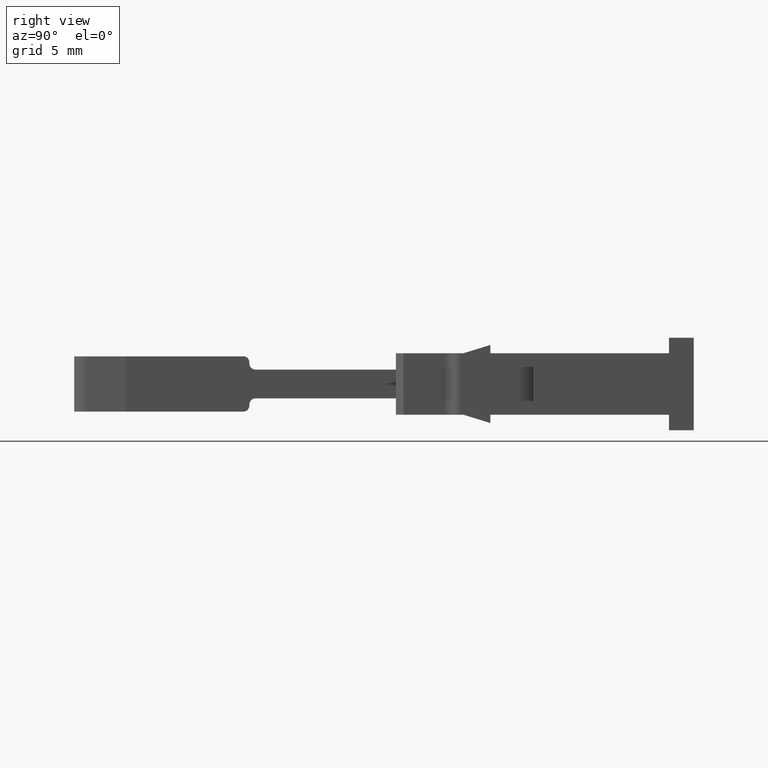
[diagram: clean part render]
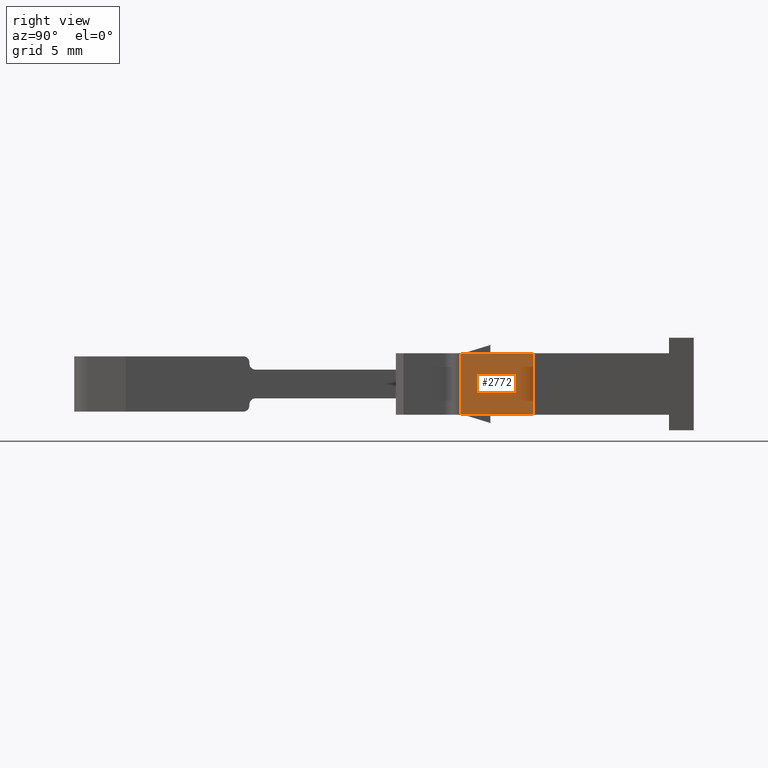
[diagram: same view with one face highlighted and labeled with its STEP entity id]
A machine part, right view. The second image highlights one B-rep face of the part: STEP entity #2772.
In plain terms, the highlighted planar face has unit normal (-1, 0, 0).
Its self-contained STEP definition (entity closure, byte-faithful):
#29 = VECTOR ( 'NONE', #1048, 1000.000000000000000 ) ;
#80 = VECTOR ( 'NONE', #1272, 1000.000000000000000 ) ;
#105 = VECTOR ( 'NONE', #1349, 1000.000000000000000 ) ;
#110 = VECTOR ( 'NONE', #1327, 1000.000000000000000 ) ;
#237 = AXIS2_PLACEMENT_3D ( 'NONE', #777, #781, #780 ) ;
#768 = FACE_OUTER_BOUND ( 'NONE', #1671, .T. ) ;
#777 = CARTESIAN_POINT ( 'NONE',  ( 1156.444467917465300, 666.6212584401425800, 3.000000000000000000 ) ) ;
#779 = PLANE ( 'NONE',  #237 ) ;
#780 = DIRECTION ( 'NONE',  ( 0.0000000000000000000, 0.0000000000000000000, 1.000000000000000000 ) ) ;
#781 = DIRECTION ( 'NONE',  ( -1.000000000000000000, 0.0000000000000000000, 0.0000000000000000000 ) ) ;
#1001 = CARTESIAN_POINT ( 'NONE',  ( 1156.444467917465300, 666.4912584401425900, 0.0000000000000000000 ) ) ;
#1045 = LINE ( 'NONE', #1059, #29 ) ;
#1048 = DIRECTION ( 'NONE',  ( 0.0000000000000000000, 0.0000000000000000000, -1.000000000000000000 ) ) ;
#1059 = CARTESIAN_POINT ( 'NONE',  ( 1156.444467917465300, 666.4912584401425900, 3.000000000000000000 ) ) ;
#1232 = LINE ( 'NONE', #1250, #80 ) ;
#1250 = CARTESIAN_POINT ( 'NONE',  ( 1156.444467917465300, 666.6212584401425800, 0.0000000000000000000 ) ) ;
#1272 = DIRECTION ( 'NONE',  ( -0.0000000000000000000, -1.000000000000000000, 0.0000000000000000000 ) ) ;
#1324 = CARTESIAN_POINT ( 'NONE',  ( 1156.444467917465300, 662.9378702069577700, 3.000000000000000000 ) ) ;
#1326 = CARTESIAN_POINT ( 'NONE',  ( 1156.444467917465300, 662.1736497164254200, 3.000000000000000000 ) ) ;
#1327 = DIRECTION ( 'NONE',  ( -0.0000000000000000000, -1.000000000000000000, -0.0000000000000000000 ) ) ;
#1346 = LINE ( 'NONE', #1324, #105 ) ;
#1349 = DIRECTION ( 'NONE',  ( 0.0000000000000000000, 0.0000000000000000000, 1.000000000000000000 ) ) ;
#1353 = LINE ( 'NONE', #1326, #110 ) ;
#1671 = EDGE_LOOP ( 'NONE', ( #2086, #2059, #2041, #2034 ) ) ;
#1780 = VERTEX_POINT ( 'NONE', #2453 ) ;
#1799 = VERTEX_POINT ( 'NONE', #2452 ) ;
#1810 = VERTEX_POINT ( 'NONE', #2464 ) ;
#1858 = VERTEX_POINT ( 'NONE', #1001 ) ;
#2034 = ORIENTED_EDGE ( 'NONE', *, *, #2610, .F. ) ;
#2041 = ORIENTED_EDGE ( 'NONE', *, *, #2649, .F. ) ;
#2059 = ORIENTED_EDGE ( 'NONE', *, *, #2641, .T. ) ;
#2086 = ORIENTED_EDGE ( 'NONE', *, *, #2556, .F. ) ;
#2452 = CARTESIAN_POINT ( 'NONE',  ( 1156.444467917465300, 662.9378667459767500, 0.0000000000000000000 ) ) ;
#2453 = CARTESIAN_POINT ( 'NONE',  ( 1156.444467917465300, 662.9378667459767500, 3.000000000000000000 ) ) ;
#2464 = CARTESIAN_POINT ( 'NONE',  ( 1156.444467917465300, 666.4912584401425900, 3.000000000000000000 ) ) ;
#2556 = EDGE_CURVE ( 'NONE', #1810, #1858, #1045, .T. ) ;
#2610 = EDGE_CURVE ( 'NONE', #1858, #1799, #1232, .T. ) ;
#2641 = EDGE_CURVE ( 'NONE', #1810, #1780, #1353, .T. ) ;
#2649 = EDGE_CURVE ( 'NONE', #1799, #1780, #1346, .T. ) ;
#2772 = ADVANCED_FACE ( 'NONE', ( #768 ), #779, .F. ) ;